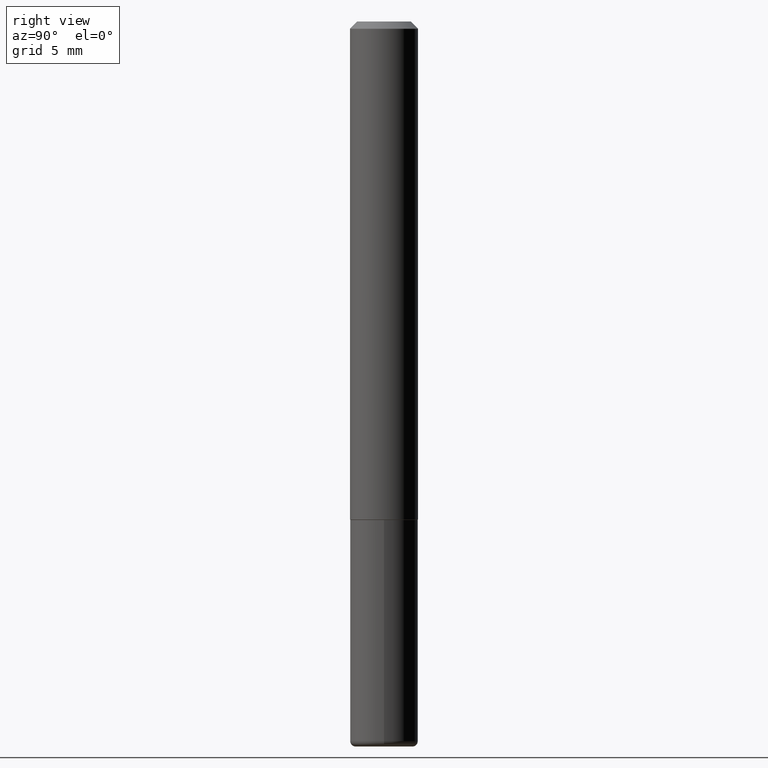
[diagram: clean part render]
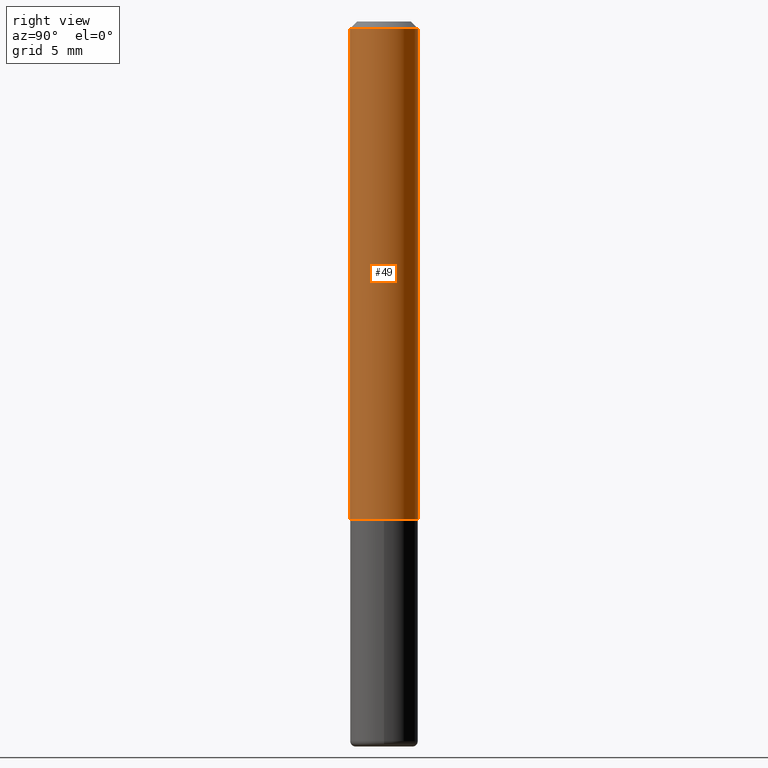
[diagram: same view with one face highlighted and labeled with its STEP entity id]
A machine part, right view. The second image highlights one B-rep face of the part: STEP entity #49.
In plain terms, the highlighted cylindrical surface (edge-blend (fillet) strip) has radius 2.3813 mm, axis along (-0, 0, 1).
Its self-contained STEP definition (entity closure, byte-faithful):
#4 = CARTESIAN_POINT ( 'NONE',  ( -6.546527510330881944E-16, -0.09375000000000011102, 3.272963696799707431E-16 ) ) ;
#5 = CIRCLE ( 'NONE', #244, 0.09375000000000019429 ) ;
#33 = VERTEX_POINT ( 'NONE', #91 ) ;
#49 = ADVANCED_FACE ( 'NONE', ( #136 ), #410, .T. ) ;
#62 = CARTESIAN_POINT ( 'NONE',  ( 6.661338147750946145E-16, 0.09375000000000011102, -3.272963696799707431E-16 ) ) ;
#79 = EDGE_CURVE ( 'NONE', #124, #132, #307, .T. ) ;
#91 = CARTESIAN_POINT ( 'NONE',  ( -6.546527510330552594E-16, -0.09375000000000499600, -1.373999999999999666 ) ) ;
#94 = ORIENTED_EDGE ( 'NONE', *, *, #205, .T. ) ;
#104 = CARTESIAN_POINT ( 'NONE',  ( 0.000000000000000000, 0.000000000000000000, 0.000000000000000000 ) ) ;
#106 = AXIS2_PLACEMENT_3D ( 'NONE', #104, #163, #204 ) ;
#124 = VERTEX_POINT ( 'NONE', #289 ) ;
#127 = LINE ( 'NONE', #62, #340 ) ;
#131 = CARTESIAN_POINT ( 'NONE',  ( 4.891384608929025126E-31, -6.982322553172705093E-17, -0.02000000000000001776 ) ) ;
#132 = VERTEX_POINT ( 'NONE', #230 ) ;
#136 = FACE_OUTER_BOUND ( 'NONE', #273, .T. ) ;
#149 = AXIS2_PLACEMENT_3D ( 'NONE', #131, #227, #353 ) ;
#163 = DIRECTION ( 'NONE',  ( -2.445692304464510391E-29, 3.491161276586350254E-15, 1.000000000000000000 ) ) ;
#178 = DIRECTION ( 'NONE',  ( -2.445692304464510391E-29, 3.491161276586350254E-15, 1.000000000000000000 ) ) ;
#180 = ORIENTED_EDGE ( 'NONE', *, *, #79, .F. ) ;
#204 = DIRECTION ( 'NONE',  ( -6.982962677686265922E-15, -1.000000000000000000, 3.491161276586350648E-15 ) ) ;
#205 = EDGE_CURVE ( 'NONE', #33, #314, #5, .T. ) ;
#213 = EDGE_CURVE ( 'NONE', #33, #124, #272, .T. ) ;
#227 = DIRECTION ( 'NONE',  ( -2.445692304464510391E-29, 3.491161276586350254E-15, 1.000000000000000000 ) ) ;
#230 = CARTESIAN_POINT ( 'NONE',  ( 6.546527510330880958E-16, 0.09374999999999995837, -0.02000000000000034736 ) ) ;
#240 = DIRECTION ( 'NONE',  ( -6.982962677686266711E-15, -1.000000000000000000, 2.913971193241874850E-15 ) ) ;
#244 = AXIS2_PLACEMENT_3D ( 'NONE', #282, #178, #240 ) ;
#272 = LINE ( 'NONE', #4, #291 ) ;
#273 = EDGE_LOOP ( 'NONE', ( #94, #365, #180, #354 ) ) ;
#282 = CARTESIAN_POINT ( 'NONE',  ( 3.360381226334237203E-29, -4.796855594029644698E-15, -1.373999999999999888 ) ) ;
#289 = CARTESIAN_POINT ( 'NONE',  ( -6.431716872910806895E-16, -0.09375000000000009714, -0.01999999999999968817 ) ) ;
#291 = VECTOR ( 'NONE', #390, 39.37007874015748143 ) ;
#307 = CIRCLE ( 'NONE', #149, 0.09375000000000002776 ) ;
#313 = DIRECTION ( 'NONE',  ( -2.445692304464510391E-29, 3.491161276586350254E-15, 1.000000000000000000 ) ) ;
#314 = VERTEX_POINT ( 'NONE', #349 ) ;
#339 = EDGE_CURVE ( 'NONE', #314, #132, #127, .T. ) ;
#340 = VECTOR ( 'NONE', #313, 39.37007874015748143 ) ;
#349 = CARTESIAN_POINT ( 'NONE',  ( 6.661338147751117722E-16, 0.09374999999999537870, -1.374000000000000110 ) ) ;
#353 = DIRECTION ( 'NONE',  ( -6.982962677686265922E-15, -1.000000000000000000, 3.505871591869136910E-15 ) ) ;
#354 = ORIENTED_EDGE ( 'NONE', *, *, #213, .F. ) ;
#365 = ORIENTED_EDGE ( 'NONE', *, *, #339, .T. ) ;
#390 = DIRECTION ( 'NONE',  ( -2.445692304464510391E-29, 3.491161276586350254E-15, 1.000000000000000000 ) ) ;
#410 = CYLINDRICAL_SURFACE ( 'NONE', #106, 0.09375000000000011102 ) ;